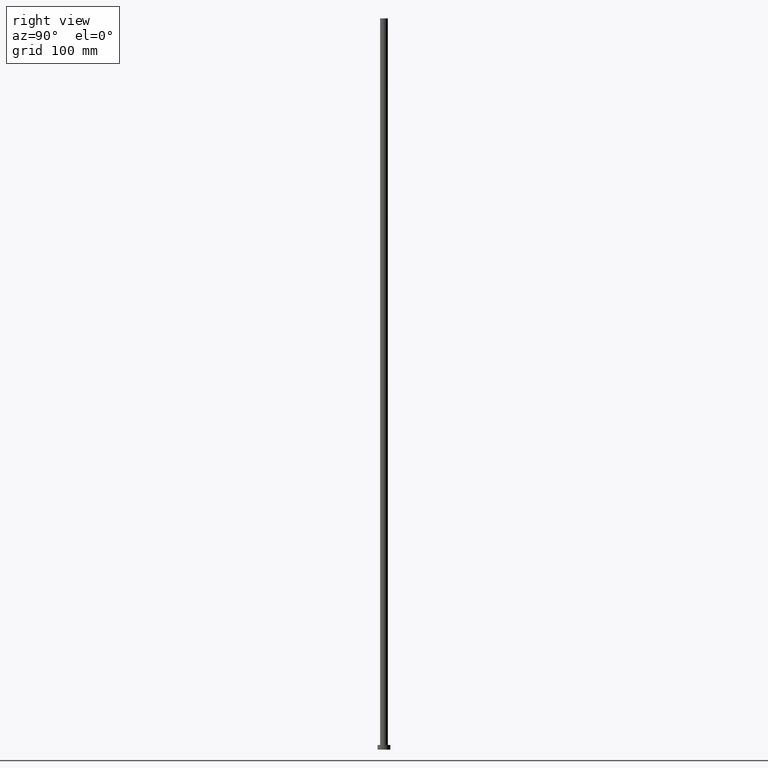
[diagram: clean part render]
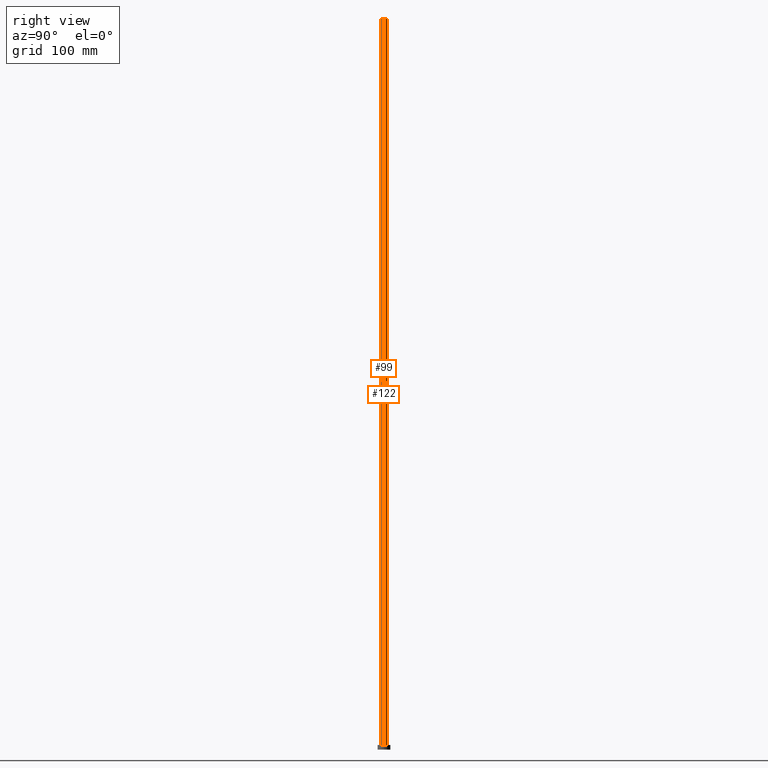
[diagram: same view with one multi-face feature highlighted, each face labeled with its STEP entity id]
A machine part, right view. The highlighted faces form ONE feature: a constant-radius fillet chain: 2 tangent blend faces with common blend radius 4.25 mm. The faces share edges in the B-rep.
Their STEP definitions:
[1] entity #122 (Cylinder):
#1 = AXIS2_PLACEMENT_3D ( 'NONE', #227, #48, #77 ) ;
#6 = VECTOR ( 'NONE', #124, 1000.000000000000000 ) ;
#22 = VERTEX_POINT ( 'NONE', #247 ) ;
#24 = CARTESIAN_POINT ( 'NONE',  ( 4.250000000000000000, 5.204748896376250699E-16, 5.000000000000000000 ) ) ;
#25 = VERTEX_POINT ( 'NONE', #24 ) ;
#29 = CYLINDRICAL_SURFACE ( 'NONE', #1, 4.250000000000000000 ) ;
#30 = VERTEX_POINT ( 'NONE', #225 ) ;
#31 = DIRECTION ( 'NONE',  ( 1.000000000000000000, 0.000000000000000000, 0.000000000000000000 ) ) ;
#32 = VECTOR ( 'NONE', #231, 1000.000000000000000 ) ;
#34 = CARTESIAN_POINT ( 'NONE',  ( 4.250000000000000000, 5.204748896376250699E-16, 800.0000000000000000 ) ) ;
#37 = LINE ( 'NONE', #34, #32 ) ;
#47 = ORIENTED_EDGE ( 'NONE', *, *, #251, .T. ) ;
#48 = DIRECTION ( 'NONE',  ( -0.000000000000000000, -0.000000000000000000, -1.000000000000000000 ) ) ;
#53 = DIRECTION ( 'NONE',  ( 1.000000000000000000, 0.000000000000000000, 0.000000000000000000 ) ) ;
#74 = CARTESIAN_POINT ( 'NONE',  ( 0.000000000000000000, 0.000000000000000000, 800.0000000000000000 ) ) ;
#75 = CIRCLE ( 'NONE', #125, 4.250000000000000000 ) ;
#76 = DIRECTION ( 'NONE',  ( 0.000000000000000000, 0.000000000000000000, 1.000000000000000000 ) ) ;
#77 = DIRECTION ( 'NONE',  ( -1.000000000000000000, 0.000000000000000000, 0.000000000000000000 ) ) ;
#83 = ORIENTED_EDGE ( 'NONE', *, *, #205, .F. ) ;
#86 = CARTESIAN_POINT ( 'NONE',  ( -4.250000000000000000, 0.000000000000000000, 800.0000000000000000 ) ) ;
#101 = ORIENTED_EDGE ( 'NONE', *, *, #174, .T. ) ;
#111 = EDGE_CURVE ( 'NONE', #30, #137, #121, .T. ) ;
#121 = LINE ( 'NONE', #86, #6 ) ;
#122 = ADVANCED_FACE ( 'NONE', ( #246 ), #29, .T. ) ;
#124 = DIRECTION ( 'NONE',  ( -0.000000000000000000, -0.000000000000000000, -1.000000000000000000 ) ) ;
#125 = AXIS2_PLACEMENT_3D ( 'NONE', #234, #76, #53 ) ;
#137 = VERTEX_POINT ( 'NONE', #197 ) ;
#174 = EDGE_CURVE ( 'NONE', #22, #25, #37, .T. ) ;
#177 = ORIENTED_EDGE ( 'NONE', *, *, #111, .F. ) ;
#182 = EDGE_LOOP ( 'NONE', ( #83, #101, #47, #177 ) ) ;
#197 = CARTESIAN_POINT ( 'NONE',  ( -4.250000000000000000, 0.000000000000000000, 5.000000000000000000 ) ) ;
#205 = EDGE_CURVE ( 'NONE', #22, #30, #244, .T. ) ;
#208 = AXIS2_PLACEMENT_3D ( 'NONE', #74, #233, #31 ) ;
#225 = CARTESIAN_POINT ( 'NONE',  ( -4.250000000000000000, 0.000000000000000000, 800.0000000000000000 ) ) ;
#227 = CARTESIAN_POINT ( 'NONE',  ( 0.000000000000000000, 0.000000000000000000, 800.0000000000000000 ) ) ;
#231 = DIRECTION ( 'NONE',  ( -0.000000000000000000, -0.000000000000000000, -1.000000000000000000 ) ) ;
#233 = DIRECTION ( 'NONE',  ( 0.000000000000000000, 0.000000000000000000, 1.000000000000000000 ) ) ;
#234 = CARTESIAN_POINT ( 'NONE',  ( 0.000000000000000000, 0.000000000000000000, 5.000000000000000000 ) ) ;
#244 = CIRCLE ( 'NONE', #208, 4.250000000000000000 ) ;
#246 = FACE_OUTER_BOUND ( 'NONE', #182, .T. ) ;
#247 = CARTESIAN_POINT ( 'NONE',  ( 4.250000000000000000, 5.204748896376250699E-16, 800.0000000000000000 ) ) ;
#251 = EDGE_CURVE ( 'NONE', #25, #137, #75, .T. ) ;
[2] entity #99 (Cylinder):
#6 = VECTOR ( 'NONE', #124, 1000.000000000000000 ) ;
#10 = CARTESIAN_POINT ( 'NONE',  ( 0.000000000000000000, 0.000000000000000000, 800.0000000000000000 ) ) ;
#11 = CIRCLE ( 'NONE', #153, 4.250000000000000000 ) ;
#12 = DIRECTION ( 'NONE',  ( 1.000000000000000000, 0.000000000000000000, 0.000000000000000000 ) ) ;
#13 = DIRECTION ( 'NONE',  ( 0.000000000000000000, 0.000000000000000000, 1.000000000000000000 ) ) ;
#14 = DIRECTION ( 'NONE',  ( -1.000000000000000000, 0.000000000000000000, 0.000000000000000000 ) ) ;
#22 = VERTEX_POINT ( 'NONE', #247 ) ;
#24 = CARTESIAN_POINT ( 'NONE',  ( 4.250000000000000000, 5.204748896376250699E-16, 5.000000000000000000 ) ) ;
#25 = VERTEX_POINT ( 'NONE', #24 ) ;
#30 = VERTEX_POINT ( 'NONE', #225 ) ;
#32 = VECTOR ( 'NONE', #231, 1000.000000000000000 ) ;
#33 = EDGE_CURVE ( 'NONE', #137, #25, #172, .T. ) ;
#34 = CARTESIAN_POINT ( 'NONE',  ( 4.250000000000000000, 5.204748896376250699E-16, 800.0000000000000000 ) ) ;
#37 = LINE ( 'NONE', #34, #32 ) ;
#49 = EDGE_LOOP ( 'NONE', ( #161, #81, #203, #141 ) ) ;
#69 = FACE_OUTER_BOUND ( 'NONE', #49, .T. ) ;
#81 = ORIENTED_EDGE ( 'NONE', *, *, #93, .F. ) ;
#84 = CARTESIAN_POINT ( 'NONE',  ( 0.000000000000000000, 0.000000000000000000, 800.0000000000000000 ) ) ;
#86 = CARTESIAN_POINT ( 'NONE',  ( -4.250000000000000000, 0.000000000000000000, 800.0000000000000000 ) ) ;
#90 = AXIS2_PLACEMENT_3D ( 'NONE', #123, #13, #243 ) ;
#93 = EDGE_CURVE ( 'NONE', #30, #22, #11, .T. ) ;
#99 = ADVANCED_FACE ( 'NONE', ( #69 ), #224, .T. ) ;
#107 = DIRECTION ( 'NONE',  ( -0.000000000000000000, -0.000000000000000000, -1.000000000000000000 ) ) ;
#111 = EDGE_CURVE ( 'NONE', #30, #137, #121, .T. ) ;
#121 = LINE ( 'NONE', #86, #6 ) ;
#123 = CARTESIAN_POINT ( 'NONE',  ( 0.000000000000000000, 0.000000000000000000, 5.000000000000000000 ) ) ;
#124 = DIRECTION ( 'NONE',  ( -0.000000000000000000, -0.000000000000000000, -1.000000000000000000 ) ) ;
#137 = VERTEX_POINT ( 'NONE', #197 ) ;
#141 = ORIENTED_EDGE ( 'NONE', *, *, #33, .T. ) ;
#153 = AXIS2_PLACEMENT_3D ( 'NONE', #10, #185, #12 ) ;
#161 = ORIENTED_EDGE ( 'NONE', *, *, #174, .F. ) ;
#172 = CIRCLE ( 'NONE', #90, 4.250000000000000000 ) ;
#174 = EDGE_CURVE ( 'NONE', #22, #25, #37, .T. ) ;
#185 = DIRECTION ( 'NONE',  ( 0.000000000000000000, 0.000000000000000000, 1.000000000000000000 ) ) ;
#197 = CARTESIAN_POINT ( 'NONE',  ( -4.250000000000000000, 0.000000000000000000, 5.000000000000000000 ) ) ;
#203 = ORIENTED_EDGE ( 'NONE', *, *, #111, .T. ) ;
#216 = AXIS2_PLACEMENT_3D ( 'NONE', #84, #107, #14 ) ;
#224 = CYLINDRICAL_SURFACE ( 'NONE', #216, 4.250000000000000000 ) ;
#225 = CARTESIAN_POINT ( 'NONE',  ( -4.250000000000000000, 0.000000000000000000, 800.0000000000000000 ) ) ;
#231 = DIRECTION ( 'NONE',  ( -0.000000000000000000, -0.000000000000000000, -1.000000000000000000 ) ) ;
#243 = DIRECTION ( 'NONE',  ( 1.000000000000000000, 0.000000000000000000, 0.000000000000000000 ) ) ;
#247 = CARTESIAN_POINT ( 'NONE',  ( 4.250000000000000000, 5.204748896376250699E-16, 800.0000000000000000 ) ) ;